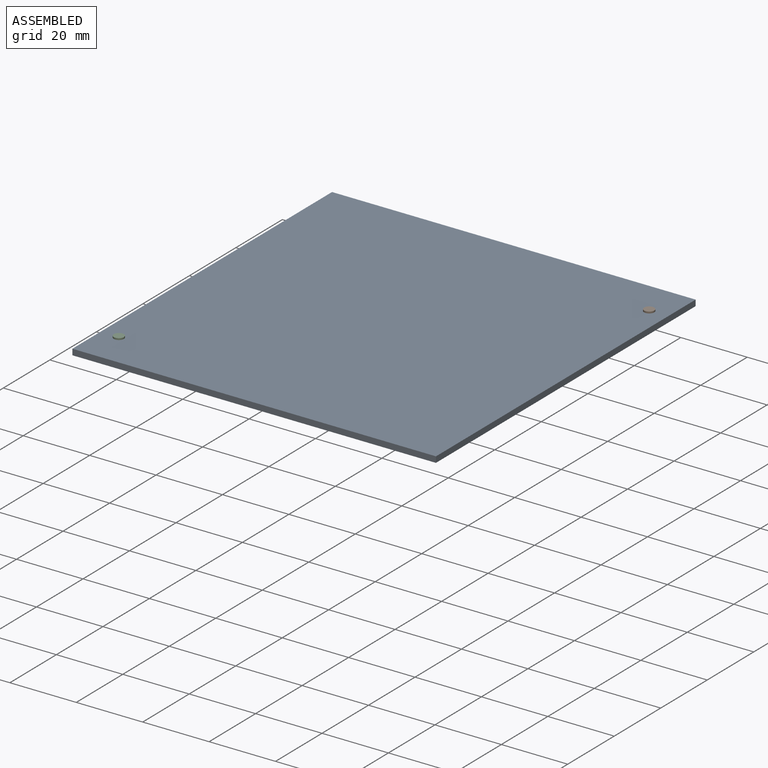
[diagram: assembled view]
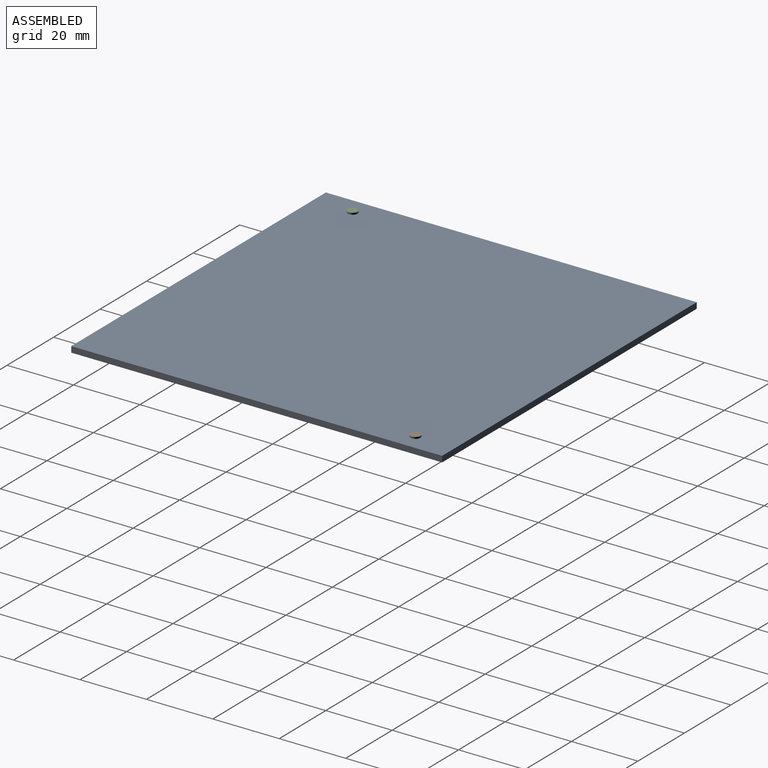
[diagram: assembled view, second angle]
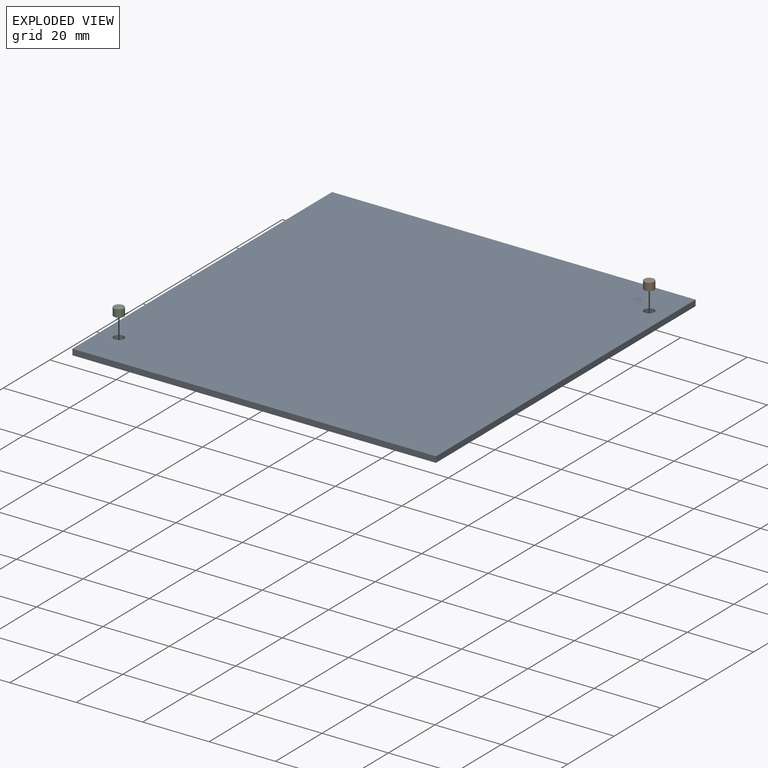
[diagram: exploded view]
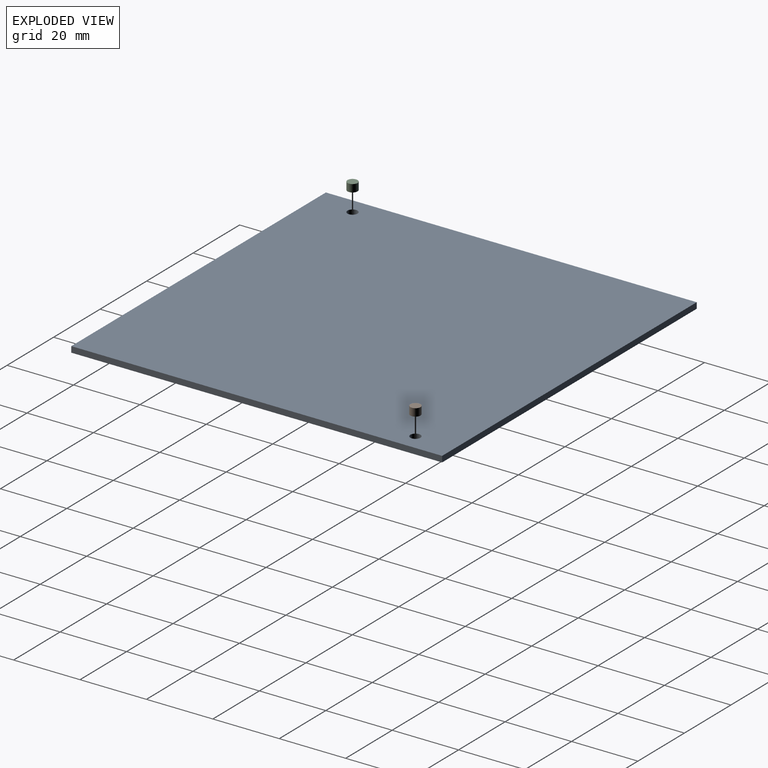
[diagram: exploded view, second angle]
ASSEMBLY  parts=3 mates=4
PART A: 8 faces, bbox 109.5x111.7x1.8 mm
  f0: plane 111.68x1.78mm, normal (-1,0,0), area 198.6mm2, adj f1,f5,f6,f7
  f1: plane 109.5x1.78mm, normal (0,-1,0), area 194.7mm2, adj f0,f2,f6,f7
  f2: plane 111.68x1.78mm, normal (1,0,0), area 198.6mm2, adj f1,f5,f6,f7
  f3: cylinder r=1.52mm len=3.05mm, axis (0,0,-1), area 17mm2, adj f6,f7
  f4: cylinder r=1.52mm len=3.05mm, axis (0,0,-1), area 17mm2, adj f6,f7
  f5: plane 109.5x1.78mm, normal (0,1,0), area 194.7mm2, adj f0,f2,f6,f7
  f6: plane 111.68x109.5mm, normal (0,0,1), area 12214.7mm2, adj f0,f1,f2,f3,f4,f5
  f7: plane 111.68x109.5mm, normal (0,0,-1), area 12214.7mm2, adj f0,f1,f2,f3,f4,f5
PART B: 3 faces, bbox 3x3x2.3 mm
  f0: cylinder r=1.52mm len=3.05mm, axis (0,0,-1), area 21.9mm2, adj f1,f2
  f1: plane 3.05x3.05mm, normal (0,0,1), area 7.3mm2, adj f0
  f2: plane 3.05x3.05mm, normal (0,0,-1), area 7.3mm2, adj f0
PART C: same geometry as B
PLACE A t=(-37.73,-30.88,24.66)mm
PLACE B t=(11.41,13,24.66)mm
PLACE C t=(-86.87,-74.76,24.66)mm
MATE planar C.f0 <-> A.f7  axis (0,0,-1) through (-86.87,-74.76,24.66)mm
MATE slider C.f0 <-> A.f3  axis (0,0,-1) through (-86.87,-74.76,24.66)mm
MATE slider B.f0 <-> A.f4  axis (0,0,-1) through (11.41,13,25.81)mm
MATE planar B.f0 <-> A.f7  axis (0,0,-1) through (11.41,13,24.66)mm
